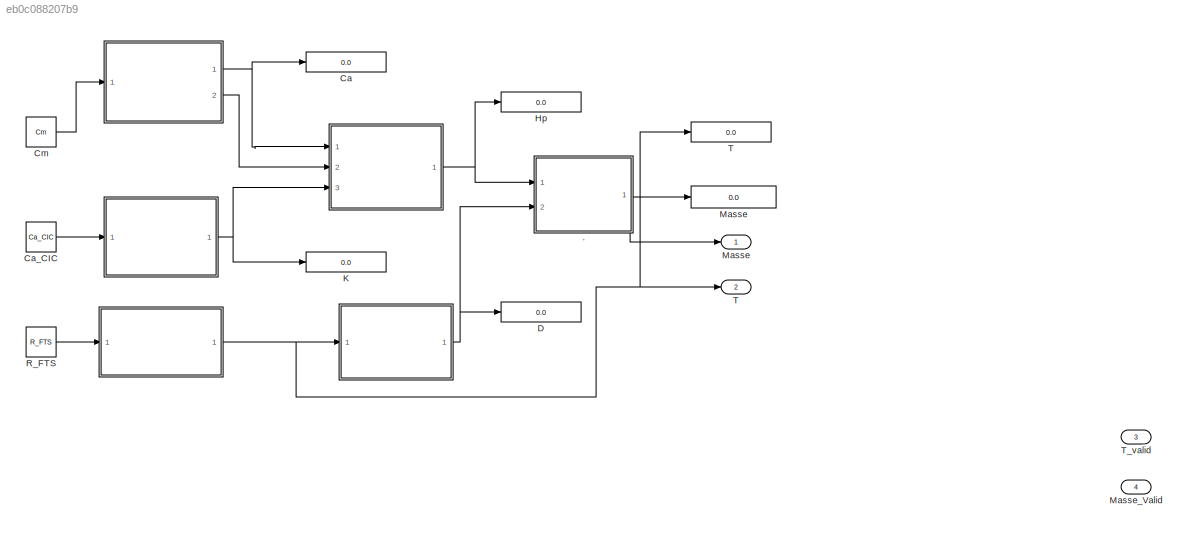
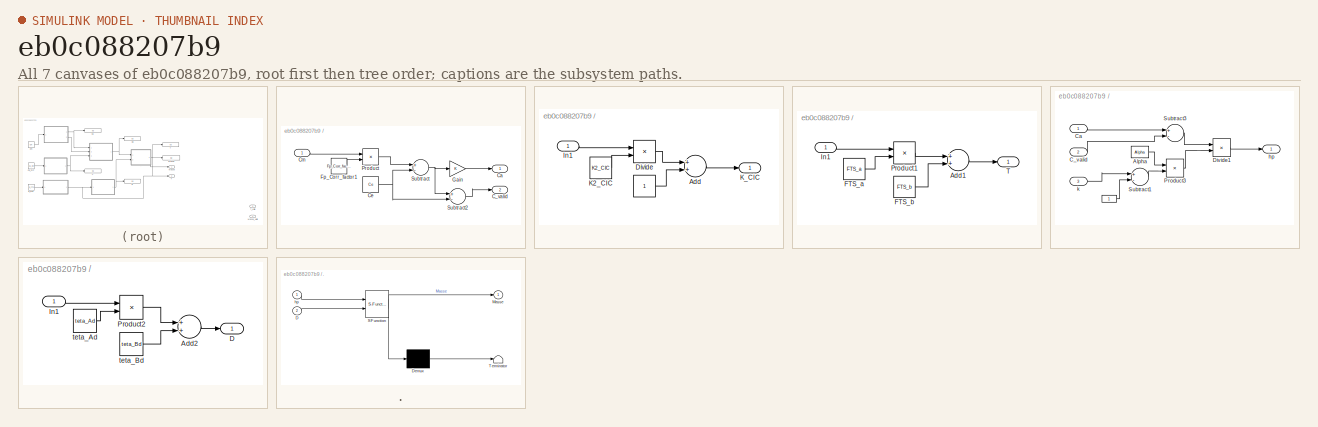
[diagram: thumbnail index - all 7 canvases of the model, root first then tree order]
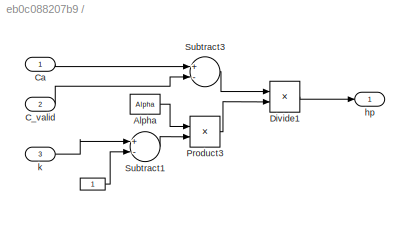
MODEL slx_eb0c088207b9
KIND model
CONFIG AbsTol = auto
CONFIG FixedStep = auto
CONFIG MaxStep = auto
CONFIG MinStep = auto
CONFIG RelTol = 1e-3
CONFIG SampleTimeConstraint = Unconstrained
CONFIG Solver = VariableStepAuto
CONFIG SolverMode = Auto
CONFIG SolverName = VariableStepAuto
CONFIG StartTime = 0.0
CONFIG StopTime = 10.0
BLOCK [SubSystem]  
  Ports = [1, 2]
  RequestExecContextInheritance = off
  Variant = off
BLOCK [SubSystem]   
  Ports = [1, 1]
  RequestExecContextInheritance = off
  Variant = off
BLOCK [SubSystem]    
  Ports = [1, 1]
  RequestExecContextInheritance = off
  Variant = off
BLOCK [SubSystem]     
  Ports = [3, 1]
  RequestExecContextInheritance = off
  Variant = off
BLOCK [SubSystem]       
  Ports = [1, 1]
  RequestExecContextInheritance = off
  Variant = off
BLOCK [Display]          Masse 
  Decimation = 1
  Ports = [1]
BLOCK [Sum]       /Add2
  InputSameDT = off
  OutDataTypeStr = Inherit: Inherit via internal rule
  Ports = [2, 1]
  SaturateOnIntegerOverflow = off
BLOCK [Outport]       /D
  IconDisplay = Port number
BLOCK [Inport]       /In1
  IconDisplay = Port number
BLOCK [Product]       /Product2
  InputSameDT = off
  OutDataTypeStr = Inherit: Inherit via internal rule
  Ports = [2, 1]
  RndMeth = Floor
  SaturateOnIntegerOverflow = off
BLOCK [Constant]       /teta_Ad
  Value = teta_Ad
BLOCK [Constant]       /teta_Bd
  Value = teta_Bd
BLOCK [Constant]     /      
BLOCK [Constant]     /Alpha
  Value = Alpha
BLOCK [Inport]     /C_valid
  IconDisplay = Port number
  Port = 2
BLOCK [Inport]     /Ca
  IconDisplay = Port number
BLOCK [Product]     /Divide1
  InputSameDT = off
  Inputs = */
  OutDataTypeStr = Inherit: Inherit via internal rule
  Ports = [2, 1]
  RndMeth = Floor
  SaturateOnIntegerOverflow = off
BLOCK [Product]     /Product3
  InputSameDT = off
  OutDataTypeStr = Inherit: Inherit via internal rule
  Ports = [2, 1]
  RndMeth = Floor
  SaturateOnIntegerOverflow = off
BLOCK [Sum]     /Subtract1
  InputSameDT = off
  Inputs = +-
  OutDataTypeStr = Inherit: Inherit via internal rule
  Ports = [2, 1]
  SaturateOnIntegerOverflow = off
BLOCK [Sum]     /Subtract3
  InputSameDT = off
  Inputs = +-
  OutDataTypeStr = Inherit: Inherit via internal rule
  Ports = [2, 1]
  SaturateOnIntegerOverflow = off
BLOCK [Outport]     /hp
  IconDisplay = Port number
BLOCK [Inport]     /k
  IconDisplay = Port number
  Port = 3
BLOCK [Sum]    /Add1
  InputSameDT = off
  OutDataTypeStr = Inherit: Inherit via internal rule
  Ports = [2, 1]
  SaturateOnIntegerOverflow = off
BLOCK [Constant]    /FTS_a
  Value = FTS_a
BLOCK [Constant]    /FTS_b
  Value = FTS_b
BLOCK [Inport]    /In1
  IconDisplay = Port number
BLOCK [Product]    /Product1
  InputSameDT = off
  OutDataTypeStr = Inherit: Inherit via internal rule
  Ports = [2, 1]
  RndMeth = Floor
  SaturateOnIntegerOverflow = off
BLOCK [Outport]    /T
  IconDisplay = Port number
BLOCK [Display]    Ca
  Decimation = 1
  Ports = [1]
BLOCK [Display]    D
  Decimation = 1
  Ports = [1]
BLOCK [Display]    Hp
  Decimation = 1
  Ports = [1]
BLOCK [Display]    K
  Decimation = 1
  Ports = [1]
BLOCK [Display]    T         
  Decimation = 1
  Ports = [1]
BLOCK [Constant]   /    
BLOCK [Sum]   /Add
  InputSameDT = off
  OutDataTypeStr = Inherit: Inherit via internal rule
  Ports = [2, 1]
  SaturateOnIntegerOverflow = off
BLOCK [Product]   /Divide
  InputSameDT = off
  Inputs = */
  OutDataTypeStr = Inherit: Inherit via internal rule
  Ports = [2, 1]
  RndMeth = Floor
  SaturateOnIntegerOverflow = off
BLOCK [Inport]   /In1
  IconDisplay = Port number
BLOCK [Constant]   /K2_CIC
  Value = K2_CIC
BLOCK [Outport]   /K_CIC
  IconDisplay = Port number
BLOCK [Outport]  /C_valid
  IconDisplay = Port number
  Port = 2
BLOCK [Outport]  /Ca
  IconDisplay = Port number
BLOCK [Constant]  /Ce
  Value = Ce
BLOCK [Inport]  /Cm
  IconDisplay = Port number
BLOCK [Constant]  /Fp_Corr_factor1
  Value = Fp_Corr_factor1
BLOCK [Gain]  /Gain
  OutDataTypeStr = Inherit: Inherit via internal rule
  ParamDataTypeStr = Inherit: Inherit via internal rule
  SaturateOnIntegerOverflow = off
BLOCK [Product]  /Product
  InputSameDT = off
  OutDataTypeStr = Inherit: Inherit via internal rule
  Ports = [2, 1]
  RndMeth = Floor
  SaturateOnIntegerOverflow = off
BLOCK [Sum]  /Subtract
  InputSameDT = off
  Inputs = +-
  OutDataTypeStr = Inherit: Inherit via internal rule
  Ports = [2, 1]
  SaturateOnIntegerOverflow = off
BLOCK [Sum]  /Subtract2
  InputSameDT = off
  Inputs = +-
  OutDataTypeStr = Inherit: Inherit via internal rule
  Ports = [2, 1]
  SaturateOnIntegerOverflow = off
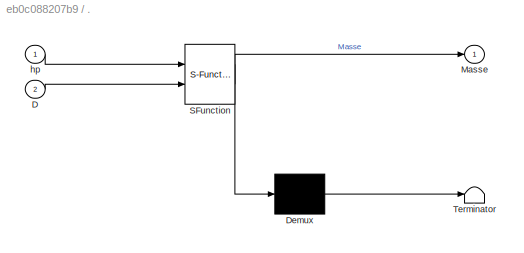
BLOCK [SubSystem] .
  ErrorFcn = Stateflow.Translate.translate
  PermitHierarchicalResolution = ExplicitOnly
  Ports = [2, 1]
  RequestExecContextInheritance = off
  SFBlockType = MATLAB Function
  TreatAsAtomicUnit = on
  Variant = off
BLOCK [Demux] ./ Demux 
  Outputs = 1
  Ports = [1, 1]
BLOCK [S-Function] ./ SFunction 
  EnableBusSupport = on
  FunctionName = sf_sfun
  PortCounts = [2 2]
  Ports = [2, 2]
  SFunctionDeploymentMode = off
  Tag = Stateflow S-Function model 2
BLOCK [Terminator] ./ Terminator 
BLOCK [Inport] ./D
  IconDisplay = Port number
  Port = 2
BLOCK [Outport] ./Masse
  IconDisplay = Port number
BLOCK [Inport] ./hp
  IconDisplay = Port number
BLOCK [Constant] Ca_CIC
  Value = Ca_CIC
BLOCK [Constant] Cm
  Value = Cm
BLOCK [Outport] Masse
  IconDisplay = Port number
BLOCK [Outport] Masse_Valid
  IconDisplay = Port number
  Port = 4
BLOCK [Constant] R_FTS
  Value = R_FTS
BLOCK [Outport] T
  IconDisplay = Port number
  Port = 2
BLOCK [Outport] T_valid
  IconDisplay = Port number
  Port = 3
LINE       /Add2:1 ->       /D:1
LINE       /In1:1 ->       /Product2:1
LINE       /Product2:1 ->       /Add2:1
LINE       /teta_Ad:1 ->       /Product2:2
LINE       /teta_Bd:1 ->       /Add2:2
NET       :1 ->    D:1, .:2
LINE     /      :1 ->     /Subtract1:2
LINE     /Alpha:1 ->     /Product3:1
LINE     /C_valid:1 ->     /Subtract3:2
LINE     /Ca:1 ->     /Subtract3:1
LINE     /Divide1:1 ->     /hp:1
LINE     /Product3:1 ->     /Divide1:2
LINE     /Subtract1:1 ->     /Product3:2
LINE     /Subtract3:1 ->     /Divide1:1
LINE     /k:1 ->     /Subtract1:1
NET     :1 ->    Hp:1, .:1
LINE    /Add1:1 ->    /T:1
LINE    /FTS_a:1 ->    /Product1:2
LINE    /FTS_b:1 ->    /Add1:2
LINE    /In1:1 ->    /Product1:1
LINE    /Product1:1 ->    /Add1:1
NET    :1 ->       :1,    T         :1, T:1
LINE   /    :1 ->   /Add:2
LINE   /Add:1 ->   /K_CIC:1
LINE   /Divide:1 ->   /Add:1
LINE   /In1:1 ->   /Divide:1
LINE   /K2_CIC:1 ->   /Divide:2
NET   :1 ->     :3,    K:1
NET  /Ce:1 ->  /Subtract2:2,  /Subtract:2
LINE  /Cm:1 ->  /Product:1
LINE  /Fp_Corr_factor1:1 ->  /Product:2
LINE  /Gain:1 ->  /Ca:1
LINE  /Product:1 ->  /Subtract:1
LINE  /Subtract2:1 ->  /C_valid:1
NET  /Subtract:1 ->  /Gain:1,  /Subtract2:1
NET  :1 ->     :1,    Ca:1
LINE  :2 ->     :2
NET .:1 ->          Masse :1, Masse:1
LINE Ca_CIC:1 ->   :1
LINE Cm:1 ->  :1
LINE R_FTS:1 ->    :1
note: NET lines group one-source signal fan-out (src -> all destinations, sorted); 1:1 wires keep LINE
CHART . states=1 transitions=1
  STATE_LABEL 'eML_blk_kernel()'
  STATE_LABEL 'SCRIPT:\nfunction Masse = fcn(hp,D)\n%#les Ai sont des choix arbitraires\nA0 = 0;\nA1 = 1;\nA2 = 2;\nA3 = 0.5;\nA4 = 0.05;\nA5 = 1;\nA6 = 1.5;\nMt_corr_slop = 1;\nMt_corr_offset = 0;\nVtunususable = 72.41 ;\nvolume = A0 + A1*hp + A2*hp^2 +  A3*hp^3 + A4*hp^4 + A5*hp^5 + A6*hp^6;\nMasse =(volume- Vtunususable) * D * Mt_corr_slop + Mt_corr_offset;\nend'
